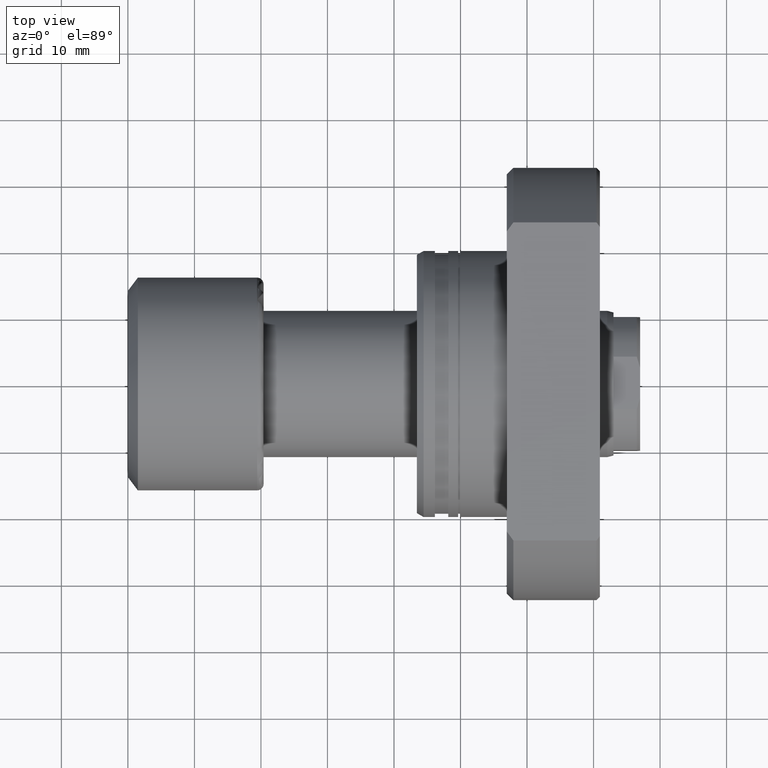
[diagram: clean part render]
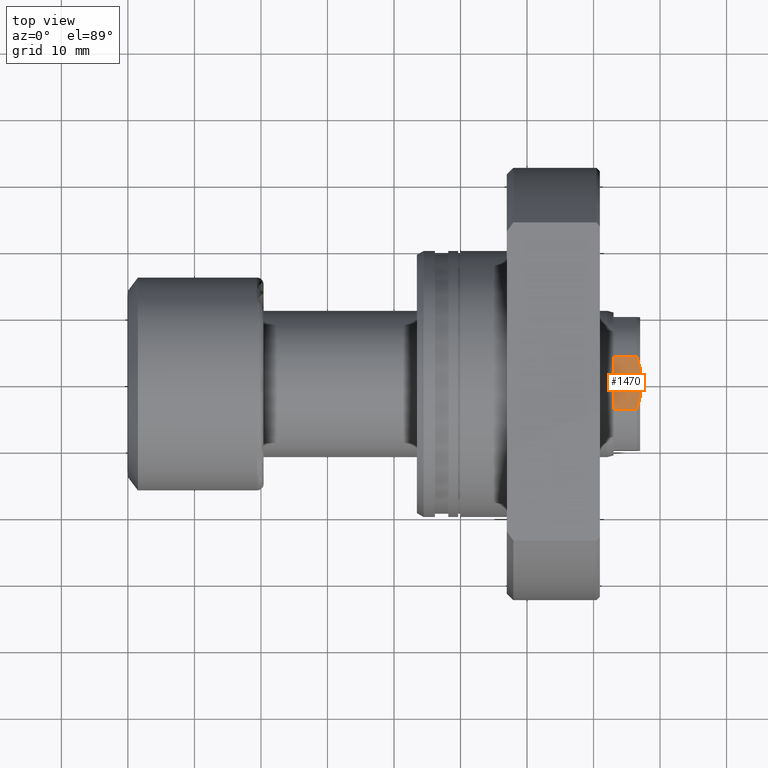
[diagram: same view with one face highlighted and labeled with its STEP entity id]
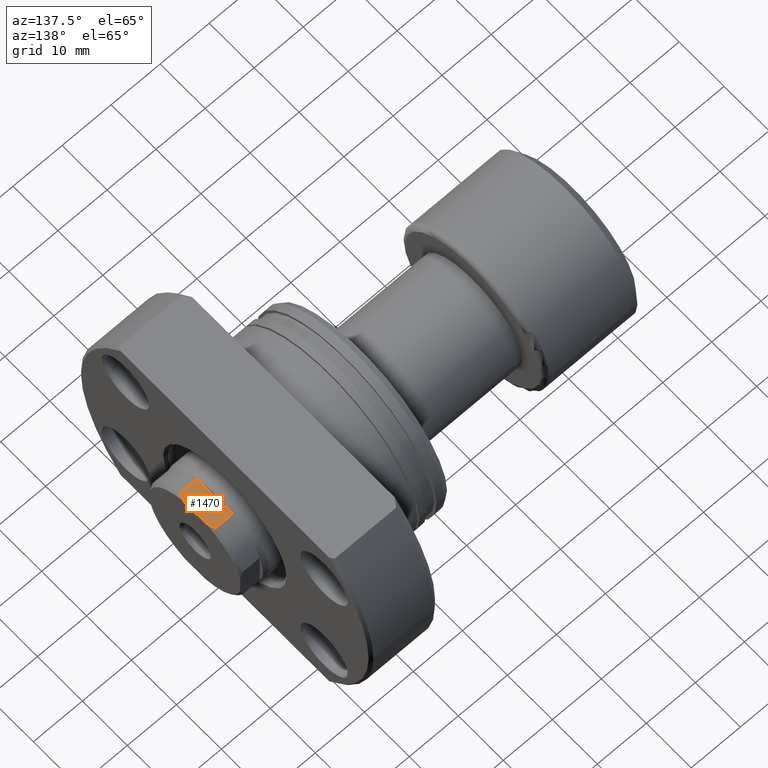
[diagram: same view with one face highlighted and labeled with its STEP entity id]
A machine part, top view. The second image highlights one B-rep face of the part: STEP entity #1470.
A second angle (auxiliary view) of the same face is appended — the face is thin or edge-on in the first view.
In plain terms, the highlighted planar face has unit normal (0, 0, -1).
Its self-contained STEP definition (entity closure, byte-faithful):
#177 = CARTESIAN_POINT ( 'NONE',  ( 76.87338680022151038, 2.826793465657390758, 9.999999999999998224 ) ) ;
#246 = EDGE_CURVE ( 'NONE', #2874, #1844, #314, .T. ) ;
#272 = CARTESIAN_POINT ( 'NONE',  ( 76.49999999999998579, -3.944933459516318575, 10.00000000000043343 ) ) ;
#314 = LINE ( 'NONE', #2280, #1711 ) ;
#344 = CARTESIAN_POINT ( 'NONE',  ( 76.99999999999992895, -3.944933459516154706, 9.999999999999998224 ) ) ;
#378 = CARTESIAN_POINT ( 'NONE',  ( 72.99999999999992895, -3.944933459516260399, 10.00000000000043343 ) ) ;
#425 = DIRECTION ( 'NONE',  ( 0.000000000000000000, 1.000000000000000000, 2.198672669360525933E-16 ) ) ;
#475 = EDGE_CURVE ( 'NONE', #1844, #1955, #3076, .T. ) ;
#568 = LINE ( 'NONE', #2294, #3083 ) ;
#709 = CARTESIAN_POINT ( 'NONE',  ( 77.00000000000004263, 2.249999999999858780, 10.00000000000000000 ) ) ;
#804 = ORIENTED_EDGE ( 'NONE', *, *, #2193, .F. ) ;
#875 = ORIENTED_EDGE ( 'NONE', *, *, #2173, .T. ) ;
#964 = CARTESIAN_POINT ( 'NONE',  ( 76.99999999999995737, -2.249999999999906741, 10.00000000000000000 ) ) ;
#1065 = VERTEX_POINT ( 'NONE', #2724 ) ;
#1079 = DIRECTION ( 'NONE',  ( 1.758938135488420707E-14, 1.000000000000000000, 2.198672669360525686E-16 ) ) ;
#1150 = CARTESIAN_POINT ( 'NONE',  ( 73.00000000000007105, 3.944933459516047236, 9.999999999999563016 ) ) ;
#1195 = CARTESIAN_POINT ( 'NONE',  ( 76.49999999999995737, 3.944933459515989060, 9.999999999999563016 ) ) ;
#1255 = CARTESIAN_POINT ( 'NONE',  ( 76.87338680022155302, -2.826793465657308602, 9.999999999999998224 ) ) ;
#1304 = AXIS2_PLACEMENT_3D ( 'NONE', #1944, #2636, #425 ) ;
#1378 = EDGE_CURVE ( 'NONE', #2818, #2942, #3140, .T. ) ;
#1394 = ORIENTED_EDGE ( 'NONE', *, *, #1378, .F. ) ;
#1444 = CARTESIAN_POINT ( 'NONE',  ( 76.70335817859873373, 3.390779519436750267, 10.00000000000000000 ) ) ;
#1470 = ADVANCED_FACE ( 'NONE', ( #3154 ), #1644, .F. ) ;
#1559 = B_SPLINE_CURVE_WITH_KNOTS ( 'NONE', 3,
 ( #709, #177, #1444, #1195 ),
 .UNSPECIFIED., .F., .F.,
 ( 4, 4 ),
 ( 1.084202172485504434E-17, 0.001767144428785424491 ),
 .UNSPECIFIED. ) ;
#1607 = CARTESIAN_POINT ( 'NONE',  ( 76.49999999999995737, 3.944933459515989060, 9.999999999999563016 ) ) ;
#1641 = DIRECTION ( 'NONE',  ( 1.000000000000000000, -1.657264799492230625E-14, -0.000000000000000000 ) ) ;
#1644 = PLANE ( 'NONE',  #1304 ) ;
#1678 = CARTESIAN_POINT ( 'NONE',  ( 76.49999999999998579, -3.944933459516318575, 10.00000000000043343 ) ) ;
#1711 = VECTOR ( 'NONE', #2770, 1000.000000000000000 ) ;
#1844 = VERTEX_POINT ( 'NONE', #1678 ) ;
#1881 = ORIENTED_EDGE ( 'NONE', *, *, #475, .T. ) ;
#1933 = EDGE_CURVE ( 'NONE', #1065, #2942, #1559, .T. ) ;
#1944 = CARTESIAN_POINT ( 'NONE',  ( 72.99999999999992895, -3.944933459516088536, 9.999999999999998224 ) ) ;
#1955 = VERTEX_POINT ( 'NONE', #2176 ) ;
#1959 = CARTESIAN_POINT ( 'NONE',  ( 73.00000000000007105, 3.944933459516047236, 9.999999999999563016 ) ) ;
#1983 = VECTOR ( 'NONE', #1079, 1000.000000000000000 ) ;
#2000 = CARTESIAN_POINT ( 'NONE',  ( 76.70335817859908900, -3.390779519436940337, 9.999999999999564793 ) ) ;
#2099 = DIRECTION ( 'NONE',  ( 1.758938135488420707E-14, 1.000000000000000000, 2.198672669360525686E-16 ) ) ;
#2173 = EDGE_CURVE ( 'NONE', #1955, #1065, #2790, .T. ) ;
#2176 = CARTESIAN_POINT ( 'NONE',  ( 76.99999999999995737, -2.249999999999906741, 10.00000000000000000 ) ) ;
#2193 = EDGE_CURVE ( 'NONE', #2874, #2818, #568, .T. ) ;
#2200 = ORIENTED_EDGE ( 'NONE', *, *, #246, .T. ) ;
#2217 = ORIENTED_EDGE ( 'NONE', *, *, #1933, .T. ) ;
#2280 = CARTESIAN_POINT ( 'NONE',  ( 72.99999999999992895, -3.944933459516260399, 10.00000000000043343 ) ) ;
#2294 = CARTESIAN_POINT ( 'NONE',  ( 72.99999999999992895, -3.944933459516088536, 9.999999999999998224 ) ) ;
#2344 = VECTOR ( 'NONE', #1641, 1000.000000000000000 ) ;
#2480 = EDGE_LOOP ( 'NONE', ( #2200, #1881, #875, #2217, #1394, #804 ) ) ;
#2636 = DIRECTION ( 'NONE',  ( 3.643782820536819277E-30, 2.198672669360525933E-16, -1.000000000000000000 ) ) ;
#2724 = CARTESIAN_POINT ( 'NONE',  ( 77.00000000000004263, 2.249999999999858780, 10.00000000000000000 ) ) ;
#2770 = DIRECTION ( 'NONE',  ( 1.000000000000000000, -1.657264799492230625E-14, -0.000000000000000000 ) ) ;
#2790 = LINE ( 'NONE', #344, #1983 ) ;
#2818 = VERTEX_POINT ( 'NONE', #1959 ) ;
#2874 = VERTEX_POINT ( 'NONE', #378 ) ;
#2942 = VERTEX_POINT ( 'NONE', #1607 ) ;
#3076 = B_SPLINE_CURVE_WITH_KNOTS ( 'NONE', 3,
 ( #272, #2000, #1255, #964 ),
 .UNSPECIFIED., .F., .F.,
 ( 4, 4 ),
 ( 3.303270627903341147E-16, 0.001767144428785344477 ),
 .UNSPECIFIED. ) ;
#3083 = VECTOR ( 'NONE', #2099, 1000.000000000000000 ) ;
#3140 = LINE ( 'NONE', #1150, #2344 ) ;
#3154 = FACE_OUTER_BOUND ( 'NONE', #2480, .T. ) ;